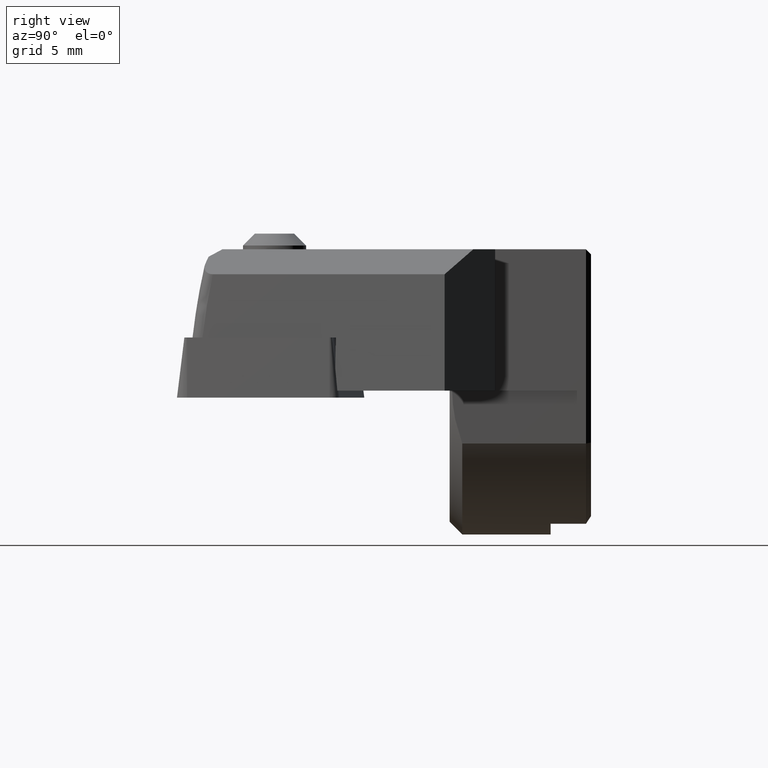
[diagram: clean part render]
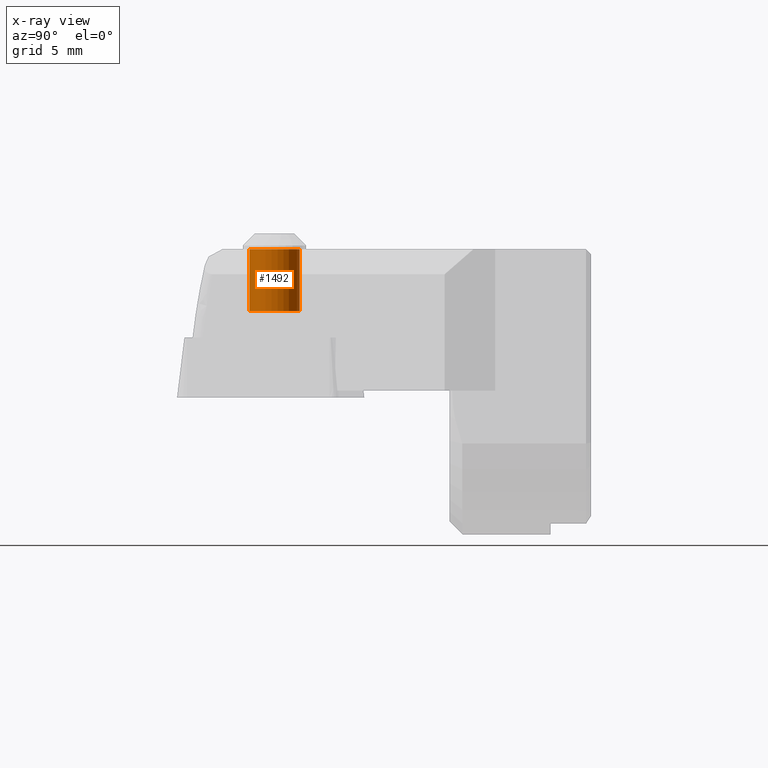
[diagram: x-ray — body ghosted, one internal face saturated and labeled with its STEP entity id]
A machine part, right view, then the same camera in x-ray: the body is ghosted and one INTERNAL B-rep face — a face not visible from any outside direction — is saturated and labeled: STEP entity #1492.
In plain terms, the highlighted cylindrical surface (edge-blend (fillet) strip) has radius 1 mm, axis along (-0, 0, -1).
Its self-contained STEP definition (entity closure, byte-faithful):
#610=EDGE_CURVE('NONE',#632,#670,#1752,.F.);
#632=VERTEX_POINT('NONE',#1775);
#670=VERTEX_POINT('NONE',#1816);
#776=EDGE_CURVE('NONE',#1444,#1218,#1929,.F.);
#1100=EDGE_CURVE('NONE',#670,#1444,#2292,.T.);
#1218=VERTEX_POINT('NONE',#2421);
#1318=EDGE_CURVE('NONE',#632,#1218,#2533,.T.);
#1444=VERTEX_POINT('NONE',#2675);
#1492=ADVANCED_FACE('NONE',(#2726),#2727,.F.);
#1752=CIRCLE('',#3008,0.999999999999999);
#1775=CARTESIAN_POINT('',(11.694,-13.53688378,5.6));
#1816=CARTESIAN_POINT('',(11.694,-11.53688378,5.6));
#1929=CIRCLE('',#3271,0.999999999999999);
#2292=LINE('',#4274,#4275);
#2421=CARTESIAN_POINT('',(11.694,-13.53688378,3.13923048454134));
#2533=LINE('',#4609,#4610);
#2675=CARTESIAN_POINT('',(11.694,-11.53688378,3.13923048454135));
#2726=FACE_OUTER_BOUND('',#4888,.T.);
#2727=CYLINDRICAL_SURFACE('',#4889,0.999999999999999);
#3008=AXIS2_PLACEMENT_3D('',#5291,#5292,#5293);
#3271=AXIS2_PLACEMENT_3D('',#5466,#5467,#5468);
#4274=CARTESIAN_POINT('',(11.694,-11.53688378,1.73602612529089));
#4275=VECTOR('',#5917,1000.0);
#4609=CARTESIAN_POINT('',(11.694,-13.53688378,1.73602612529089));
#4610=VECTOR('',#6233,1000.0);
#4888=EDGE_LOOP('',(#6478,#6479,#6480,#6481));
#4889=AXIS2_PLACEMENT_3D('',#6482,#6483,#6484);
#5291=CARTESIAN_POINT('',(11.694,-12.53688378,5.60000000000001));
#5292=DIRECTION('',(-1.22464679914735E-016,-0.0,-1.0));
#5293=DIRECTION('',(0.0,-1.0,0.0));
#5466=CARTESIAN_POINT('',(11.694,-12.53688378,3.13923048454134));
#5467=DIRECTION('',(1.22464679914735E-016,-3.68628738645072E-015,1.0));
#5468=DIRECTION('',(-4.51440004855413E-031,-1.0,-3.68628738645072E-015));
#5917=DIRECTION('',(-1.22464679914735E-016,3.71352796603441E-015,-1.0));
#6233=DIRECTION('',(-1.22464679914735E-016,3.71352796603441E-015,-1.0));
#6478=ORIENTED_EDGE('',*,*,#610,.T.);
#6479=ORIENTED_EDGE('',*,*,#1100,.T.);
#6480=ORIENTED_EDGE('',*,*,#776,.T.);
#6481=ORIENTED_EDGE('',*,*,#1318,.F.);
#6482=CARTESIAN_POINT('',(11.694,-12.53688378,1.73602612529089));
#6483=DIRECTION('',(-1.22464679914735E-016,3.68628738645072E-015,-1.0));
#6484=DIRECTION('',(-4.51440004855413E-031,-1.0,-3.68628738645072E-015));